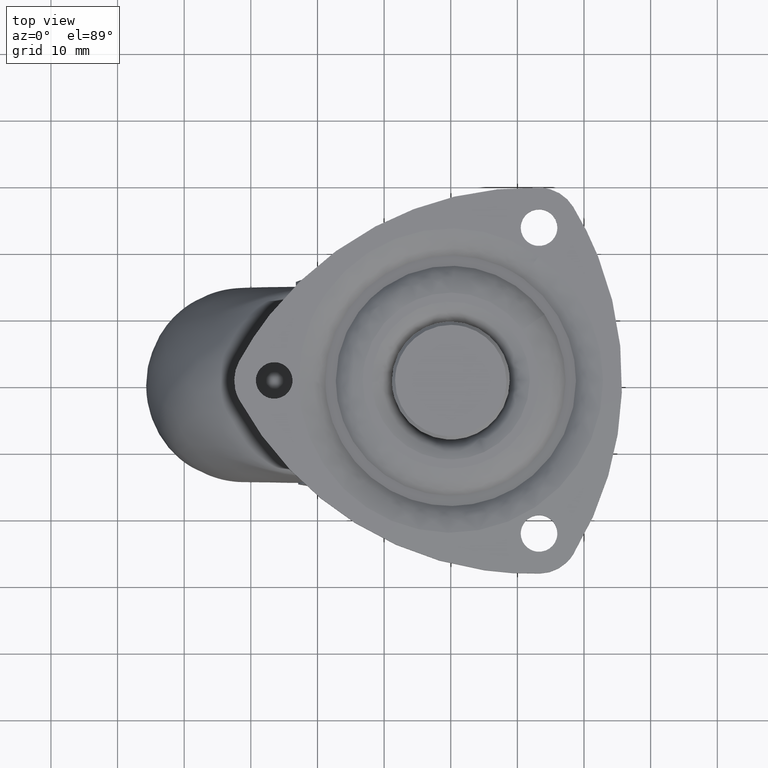
[diagram: clean part render]
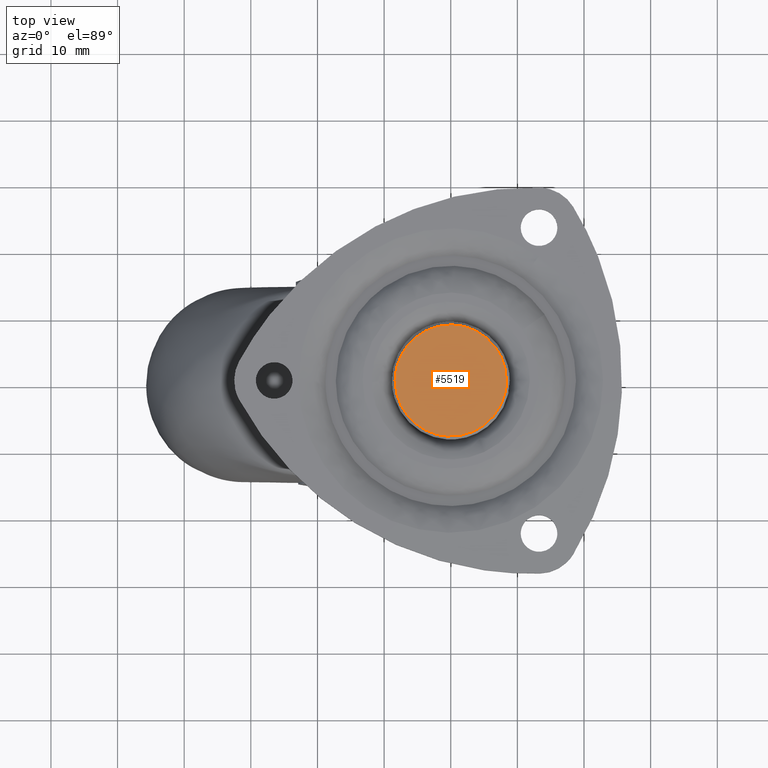
[diagram: same view with one face highlighted and labeled with its STEP entity id]
A machine part, top view. The second image highlights one B-rep face of the part: STEP entity #5519.
In plain terms, the highlighted face is a freeform B-spline surface patch.
Its self-contained STEP definition (entity closure, byte-faithful):
#5203=CARTESIAN_POINT('',(-0.550284787169269,-8.331847733428017,-9.000000000001197));
#5204=VERTEX_POINT('',#5203);
#5210=CARTESIAN_POINT('',(-8.350000000000000,0.0,-9.0));
#5211=VERTEX_POINT('',#5210);
#5212=CARTESIAN_POINT('',(-8.350000000000000,0.0,-9.0));
#5213=CARTESIAN_POINT('',(-8.350000000000000,-7.816708143354545,-9.0));
#5214=CARTESIAN_POINT('',(-0.550284787169269,-8.331847733428017,-9.000000000001197));
#5222=(BOUNDED_CURVE()B_SPLINE_CURVE(2,(#5212,#5213,#5214),.UNSPECIFIED.,.F.,.U.)B_SPLINE_CURVE_WITH_KNOTS((3,3),(0.500000000000000,0.738494527072863),.UNSPECIFIED.)CURVE()GEOMETRIC_REPRESENTATION_ITEM()RATIONAL_B_SPLINE_CURVE((1.0,0.720586281184948,0.974281704181623))REPRESENTATION_ITEM(''));
#5223=EDGE_CURVE('',#5211,#5204,#5222,.T.);
#5225=CARTESIAN_POINT('',(0.072866571533985,8.349682057601477,-9.000000000016744));
#5226=VERTEX_POINT('',#5225);
#5227=CARTESIAN_POINT('',(0.072866571533985,8.349682057601477,-9.000000000016744));
#5228=CARTESIAN_POINT('',(0.036433979475282,8.350000000000000,-9.0));
#5229=CARTESIAN_POINT('',(0.0,8.350000000000000,-9.0));
#5230=CARTESIAN_POINT('',(-8.350000000000000,8.350000000000000,-9.0));
#5231=CARTESIAN_POINT('',(-8.350000000000000,0.0,-9.0));
#5239=(BOUNDED_CURVE()B_SPLINE_CURVE(2,(#5227,#5228,#5229,#5230,#5231),.UNSPECIFIED.,.F.,.U.)B_SPLINE_CURVE_WITH_KNOTS((3,2,3),(0.248460105659848,0.250000000000000,0.500000000000000),.UNSPECIFIED.)CURVE()GEOMETRIC_REPRESENTATION_ITEM()RATIONAL_B_SPLINE_CURVE((0.996414028088453,0.998195901560321,1.0,0.707106781186547,1.0))REPRESENTATION_ITEM(''));
#5240=EDGE_CURVE('',#5226,#5211,#5239,.T.);
#5350=CARTESIAN_POINT('',(8.350000000000000,0.0,-9.0));
#5351=VERTEX_POINT('',#5350);
#5352=CARTESIAN_POINT('',(8.350000000000000,0.0,-9.0));
#5353=CARTESIAN_POINT('',(8.350000000000000,8.277448608225340,-9.0));
#5354=CARTESIAN_POINT('',(0.072866571533985,8.349682057601477,-9.000000000016744));
#5362=(BOUNDED_CURVE()B_SPLINE_CURVE(2,(#5352,#5353,#5354),.UNSPECIFIED.,.F.,.U.)B_SPLINE_CURVE_WITH_KNOTS((3,3),(0.0,0.248460105659848),.UNSPECIFIED.)CURVE()GEOMETRIC_REPRESENTATION_ITEM()RATIONAL_B_SPLINE_CURVE((1.0,0.708910879626227,0.996414028088453))REPRESENTATION_ITEM(''));
#5363=EDGE_CURVE('',#5351,#5226,#5362,.T.);
#5365=CARTESIAN_POINT('',(-0.550284787169269,-8.331847733428017,-9.000000000001197));
#5366=CARTESIAN_POINT('',(-0.275441788365570,-8.350000000000000,-9.000000000000002));
#5367=CARTESIAN_POINT('',(0.0,-8.350000000000000,-9.0));
#5368=CARTESIAN_POINT('',(8.350000000000000,-8.350000000000000,-9.0));
#5369=CARTESIAN_POINT('',(8.350000000000000,0.0,-9.0));
#5377=(BOUNDED_CURVE()B_SPLINE_CURVE(2,(#5365,#5366,#5367,#5368,#5369),.UNSPECIFIED.,.F.,.U.)B_SPLINE_CURVE_WITH_KNOTS((3,2,3),(0.738494527072863,0.750000000000000,1.0),.UNSPECIFIED.)CURVE()GEOMETRIC_REPRESENTATION_ITEM()RATIONAL_B_SPLINE_CURVE((0.974281704181621,0.986520500001599,1.0,0.707106781186547,1.0))REPRESENTATION_ITEM(''));
#5378=EDGE_CURVE('',#5204,#5351,#5377,.T.);
#5508=CARTESIAN_POINT('',(-9.184165437935114,-9.183580754572766,-9.0));
#5509=CARTESIAN_POINT('',(9.184165437935112,-9.183580754572766,-9.0));
#5510=CARTESIAN_POINT('',(-9.184165437935114,9.183803524548431,-9.0));
#5511=CARTESIAN_POINT('',(9.184165437935112,9.183803524548431,-9.0));
#5512=B_SPLINE_SURFACE_WITH_KNOTS('',1,1,((#5508,#5510),(#5509,#5511)),.UNSPECIFIED.,.F.,.F.,.U.,(2,2),(2,2),(0.0,18.368330875870232),(0.0,18.367384279121200),.UNSPECIFIED.);
#5513=ORIENTED_EDGE('',*,*,#5363,.T.);
#5514=ORIENTED_EDGE('',*,*,#5240,.T.);
#5515=ORIENTED_EDGE('',*,*,#5223,.T.);
#5516=ORIENTED_EDGE('',*,*,#5378,.T.);
#5517=EDGE_LOOP('',(#5513,#5514,#5515,#5516));
#5518=FACE_OUTER_BOUND('',#5517,.T.);
#5519=ADVANCED_FACE('',(#5518),#5512,.T.);